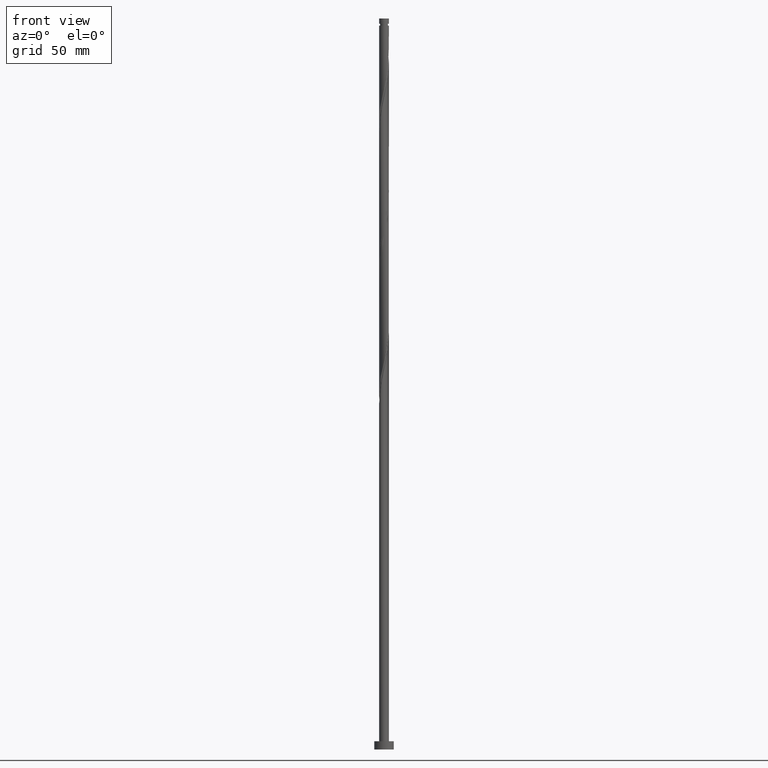
[diagram: clean part render]
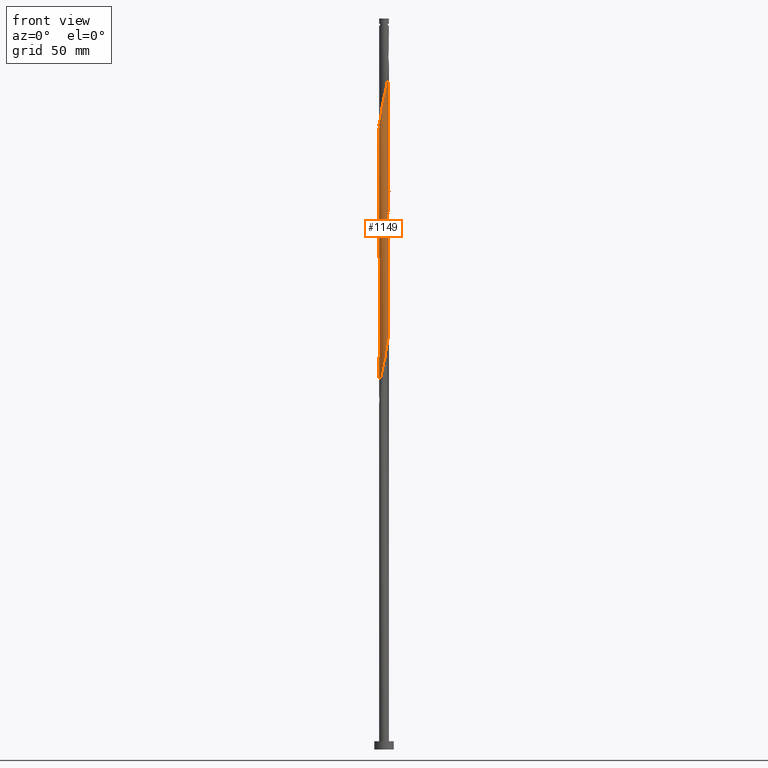
[diagram: same view with one face highlighted and labeled with its STEP entity id]
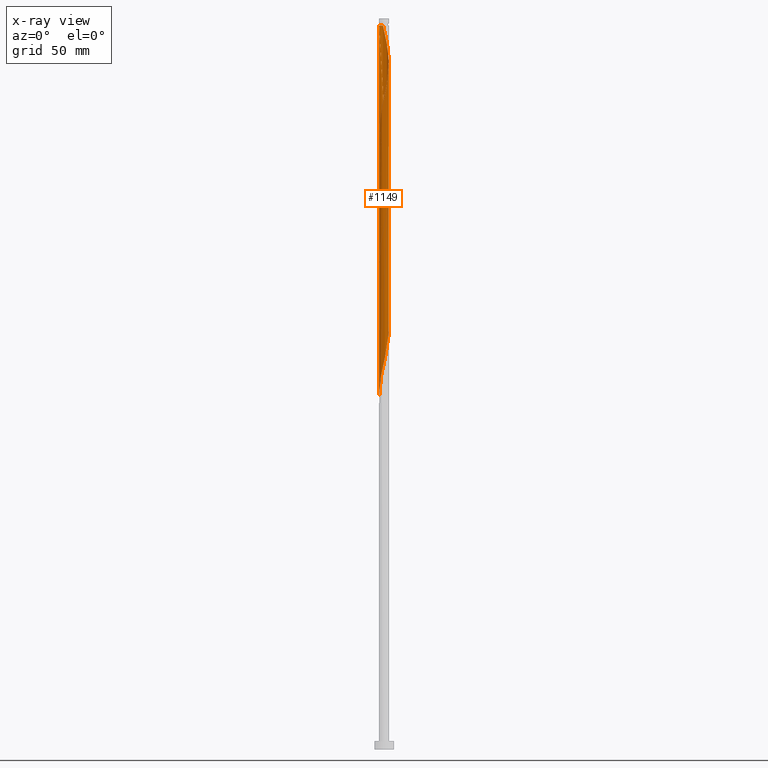
[diagram: x-ray of the same camera — body ghosted, the highlighted face saturated]
A machine part, front view. The second image highlights one B-rep face of the part: STEP entity #1149.
The next image is the same camera in x-ray: the body ghosted, the highlighted face saturated — about 0% of this face is hidden behind the body in this view.
In plain terms, the highlighted cylindrical surface (bore or boss wall) has radius 3 mm, axis along (-0, -0, -1).
Its self-contained STEP definition (entity closure, byte-faithful):
#8 = CARTESIAN_POINT ( 'NONE',  ( -3.000000000000000444, -0.2894394447869441112, 217.9966173698809087 ) ) ;
#15 = CARTESIAN_POINT ( 'NONE',  ( 1.921660071883963816, 2.322612231291373508, 353.3866902864680242 ) ) ;
#16 = CARTESIAN_POINT ( 'NONE',  ( 2.487746701027921059, 1.676638408102570255, 427.6054402864680242 ) ) ;
#21 = CARTESIAN_POINT ( 'NONE',  ( -2.652881170764462837, 1.431616744321172474, 376.8241902864680810 ) ) ;
#22 = CARTESIAN_POINT ( 'NONE',  ( 1.903086606305707695, 2.337855080563640442, 431.5116902864681379 ) ) ;
#29 = CARTESIAN_POINT ( 'NONE',  ( 2.322612231291378393, 1.921660071883965148, 428.9075236198013954 ) ) ;
#48 = CARTESIAN_POINT ( 'NONE',  ( 2.998798625402032236, 0.3074277363939136865, 421.0950236198014522 ) ) ;
#52 = CARTESIAN_POINT ( 'NONE',  ( -2.999976176089777624, 0.01195587277277179034, 300.0012736198013954 ) ) ;
#57 = DIRECTION ( 'NONE',  ( -0.000000000000000000, -0.000000000000000000, -1.000000000000000000 ) ) ;
#62 = CARTESIAN_POINT ( 'NONE',  ( 0.8635643575599494248, -2.888176173499367394, 324.7408569531347666 ) ) ;
#69 = DIRECTION ( 'NONE',  ( -0.000000000000000000, -0.000000000000000000, -1.000000000000000000 ) ) ;
#72 = CARTESIAN_POINT ( 'NONE',  ( 2.999976176089777624, -0.01195587277277147115, 341.6679402864681379 ) ) ;
#82 = CARTESIAN_POINT ( 'NONE',  ( -2.881201374597972098, 0.8865571881340392757, 296.0950236198012817 ) ) ;
#92 = CARTESIAN_POINT ( 'NONE',  ( -0.5969924622639762868, -2.939999999999999947, 318.2304402864680810 ) ) ;
#123 = CARTESIAN_POINT ( 'NONE',  ( 2.129757576223800353, 2.112849418798540047, 268.7512736198015091 ) ) ;
#136 = CARTESIAN_POINT ( 'NONE',  ( -2.112849418798540047, 2.129757576223800797, 289.5846069531348235 ) ) ;
#148 = CARTESIAN_POINT ( 'NONE',  ( -1.676638408102568256, -2.487746701027918395, 229.6887736198013954 ) ) ;
#157 = CARTESIAN_POINT ( 'NONE',  ( -2.939999999999999947, 0.5969924622639762868, 380.7304402864680810 ) ) ;
#158 = CARTESIAN_POINT ( 'NONE',  ( -2.888176173499367394, -0.8635643575599495358, 220.5741902864680526 ) ) ;
#165 = CARTESIAN_POINT ( 'NONE',  ( 0.01195587277277157696, 2.999976176089777624, 362.5012736198013954 ) ) ;
#166 = CARTESIAN_POINT ( 'NONE',  ( -1.410426430302973655, -2.664207629581488934, 392.4491902864681379 ) ) ;
#172 = CARTESIAN_POINT ( 'NONE',  ( 2.112849418798543599, 2.129757576223802129, 430.2096069531347098 ) ) ;
#181 = CARTESIAN_POINT ( 'NONE',  ( 2.652881170764467278, 1.431616744321173140, 426.3033569531347666 ) ) ;
#188 = CARTESIAN_POINT ( 'NONE',  ( 1.410426430302975209, 2.664207629581486714, 434.1158569531348235 ) ) ;
#196 = CARTESIAN_POINT ( 'NONE',  ( -3.000000000000000444, 0.000000000000000000, 447.6000000000000796 ) ) ;
#198 = CARTESIAN_POINT ( 'NONE',  ( -2.767041272681221020, -1.159086966227606874, 383.3346069531348235 ) ) ;
#201 = CARTESIAN_POINT ( 'NONE',  ( -2.501031355072561801, -1.656756518304338011, 307.8137736198013954 ) ) ;
#212 = CARTESIAN_POINT ( 'NONE',  ( -1.431616744321172474, -2.652881170764462837, 314.3241902864679673 ) ) ;
#220 = CARTESIAN_POINT ( 'NONE',  ( -2.888176173499367394, -0.8635643575599495358, 303.9075236198014522 ) ) ;
#224 = CARTESIAN_POINT ( 'NONE',  ( -3.000000000000000444, -7.455319768731686067E-16, 383.3873039311314983 ) ) ;
#228 = CARTESIAN_POINT ( 'NONE',  ( 1.136995393931459430, -2.776191901540427054, 326.0429402864680810 ) ) ;
#236 = CARTESIAN_POINT ( 'NONE',  ( 2.322612231291373952, -1.921660071883963816, 332.5533569531345961 ) ) ;
#260 = CARTESIAN_POINT ( 'NONE',  ( 0.8865571881340386096, 2.881201374597972098, 275.2616902864679673 ) ) ;
#272 = CARTESIAN_POINT ( 'NONE',  ( 1.159086966227606874, 2.767041272681216579, 273.9596069531347666 ) ) ;
#283 = CARTESIAN_POINT ( 'NONE',  ( -1.903086606305704365, 2.337855080563637777, 288.2825236198014522 ) ) ;
#294 = CARTESIAN_POINT ( 'NONE',  ( 0.01195587277277157696, 2.999976176089777624, 279.1679402864680242 ) ) ;
#303 = CARTESIAN_POINT ( 'NONE',  ( -0.5969924622639762868, -2.939999999999999947, 234.8971069531347382 ) ) ;
#308 = ORIENTED_EDGE ( 'NONE', *, *, #1634, .F. ) ;
#311 = CARTESIAN_POINT ( 'NONE',  ( 2.664207629581484493, 1.410426430302972101, 348.1783569531347666 ) ) ;
#312 = CARTESIAN_POINT ( 'NONE',  ( 2.940000000000003944, 0.5969924622639757317, 422.3971069531348235 ) ) ;
#318 = CARTESIAN_POINT ( 'NONE',  ( 2.888176173499367394, 0.8635643575599492028, 345.5741902864680810 ) ) ;
#319 = CARTESIAN_POINT ( 'NONE',  ( 0.5969924622639760647, -2.940000000000003944, 401.5637736198015091 ) ) ;
#325 = CARTESIAN_POINT ( 'NONE',  ( -2.998798625402026907, 0.3074277363939129648, 382.0325236198013954 ) ) ;
#327 = CARTESIAN_POINT ( 'NONE',  ( 2.881201374597976983, 0.8865571881340381655, 423.6991902864681379 ) ) ;
#335 = CARTESIAN_POINT ( 'NONE',  ( 2.776191901540428830, -1.136995393931462317, 414.5846069531347666 ) ) ;
#343 = CARTESIAN_POINT ( 'NONE',  ( 3.001153726777532338, -0.2835159908483710356, 418.4908569531348235 ) ) ;
#346 = CARTESIAN_POINT ( 'NONE',  ( 2.881201374597972098, -0.8865571881340383875, 337.7616902864681379 ) ) ;
#353 = DIRECTION ( 'NONE',  ( -1.000000000000000000, 0.000000000000000000, 0.000000000000000000 ) ) ;
#367 = CARTESIAN_POINT ( 'NONE',  ( -2.129757576223800353, -2.112849418798540491, 310.4179402864680810 ) ) ;
#372 = FACE_OUTER_BOUND ( 'NONE', #1046, .T. ) ;
#377 = CARTESIAN_POINT ( 'NONE',  ( 2.939999999999999947, -0.5969924622639763978, 339.0637736198014522 ) ) ;
#385 = CARTESIAN_POINT ( 'NONE',  ( -2.999999999999958256, 0.000000000000000000, 443.2304402864680810 ) ) ;
#389 = CARTESIAN_POINT ( 'NONE',  ( 2.652881170764462837, -1.431616744321172918, 335.1575236198013386 ) ) ;
#421 = CARTESIAN_POINT ( 'NONE',  ( -3.000000000000004441, -0.005977960122769745803, 378.0999301963217931 ) ) ;
#433 = CARTESIAN_POINT ( 'NONE',  ( 2.939999999999999947, -0.5969924622639763978, 255.7304402864680242 ) ) ;
#444 = CARTESIAN_POINT ( 'NONE',  ( -2.337855080563637777, -1.903086606305704365, 225.7825236198013670 ) ) ;
#456 = CARTESIAN_POINT ( 'NONE',  ( 0.2835159908483689817, -3.001153726777527897, 238.8033569531347666 ) ) ;
#463 = CARTESIAN_POINT ( 'NONE',  ( -2.112849418798540047, 2.129757576223800797, 372.9179402864680810 ) ) ;
#464 = CARTESIAN_POINT ( 'NONE',  ( 0.8635643575599520894, 2.888176173499370947, 436.7200236198013954 ) ) ;
#470 = CARTESIAN_POINT ( 'NONE',  ( 3.000000000000002220, 0.2894394447869352294, 342.9966173698808234 ) ) ;
#471 = CARTESIAN_POINT ( 'NONE',  ( -2.112849418798543599, -2.129757576223802573, 388.5429402864679673 ) ) ;
#473 = CARTESIAN_POINT ( 'NONE',  ( -3.000000000000000444, -7.455319768731686067E-16, 216.7206372644649264 ) ) ;
#485 = CARTESIAN_POINT ( 'NONE',  ( 2.129757576223802573, -2.112849418798543599, 409.3762736198013386 ) ) ;
#489 = VERTEX_POINT ( 'NONE', #473 ) ;
#491 = DIRECTION ( 'NONE',  ( -0.000000000000000000, -0.000000000000000000, -1.000000000000000000 ) ) ;
#506 = CARTESIAN_POINT ( 'NONE',  ( -3.001153726777527897, -0.2835159908483692037, 301.3033569531347098 ) ) ;
#516 = CARTESIAN_POINT ( 'NONE',  ( 0.5735401742041597029, -2.944664950138447868, 323.4387736198015091 ) ) ;
#566 = CARTESIAN_POINT ( 'NONE',  ( 0.3074277363939131313, 2.998798625402026907, 277.8658569531347098 ) ) ;
#581 = CARTESIAN_POINT ( 'NONE',  ( 0.8635643575599494248, -2.888176173499367394, 241.4075236198014238 ) ) ;
#591 = CARTESIAN_POINT ( 'NONE',  ( -0.8865571881340394977, -2.881201374597972098, 233.5950236198014238 ) ) ;
#600 = CARTESIAN_POINT ( 'NONE',  ( 2.322612231291373952, -1.921660071883963816, 249.2200236198013670 ) ) ;
#603 = EDGE_CURVE ( 'NONE', #1161, #1467, #1200, .T. ) ;
#610 = CARTESIAN_POINT ( 'NONE',  ( -0.2835159908483699254, 3.001153726777527453, 363.8033569531348235 ) ) ;
#611 = CARTESIAN_POINT ( 'NONE',  ( -0.5735401742041599249, 2.944664950138447423, 281.7721069531348235 ) ) ;
#617 = CARTESIAN_POINT ( 'NONE',  ( -2.767041272681216579, 1.159086966227606208, 378.1262736198014522 ) ) ;
#618 = CARTESIAN_POINT ( 'NONE',  ( 1.136995393931462317, 2.776191901540428830, 435.4179402864681379 ) ) ;
#623 = CARTESIAN_POINT ( 'NONE',  ( -2.322612231291373952, 1.921660071883963816, 374.2200236198013386 ) ) ;
#624 = CARTESIAN_POINT ( 'NONE',  ( -2.881201374597976539, -0.8865571881340398308, 382.0325236198013954 ) ) ;
#633 = CARTESIAN_POINT ( 'NONE',  ( -2.652881170764467278, -1.431616744321173362, 384.6366902864681379 ) ) ;
#639 = DIRECTION ( 'NONE',  ( -1.000000000000000000, 0.000000000000000000, 0.000000000000000000 ) ) ;
#641 = CARTESIAN_POINT ( 'NONE',  ( -2.322612231291378393, -1.921660071883965815, 387.2408569531348803 ) ) ;
#656 = CARTESIAN_POINT ( 'NONE',  ( -0.8865571881340394977, -2.881201374597972098, 316.9283569531345393 ) ) ;
#668 = CARTESIAN_POINT ( 'NONE',  ( -2.944664950138447423, -0.5735401742041597029, 302.6054402864680242 ) ) ;
#678 = CARTESIAN_POINT ( 'NONE',  ( -2.998798625402026907, 0.3074277363939129648, 298.6991902864680810 ) ) ;
#687 = CARTESIAN_POINT ( 'NONE',  ( -2.652881170764462837, 1.431616744321172474, 293.4908569531346529 ) ) ;
#698 = CARTESIAN_POINT ( 'NONE',  ( 2.767041272681216579, -1.159086966227606652, 336.4596069531348235 ) ) ;
#716 = CARTESIAN_POINT ( 'NONE',  ( -2.322612231291373952, 1.921660071883963816, 290.8866902864679673 ) ) ;
#717 = ORIENTED_EDGE ( 'NONE', *, *, #1511, .F. ) ;
#729 = CARTESIAN_POINT ( 'NONE',  ( -0.2835159908483699254, 3.001153726777527453, 280.4700236198013954 ) ) ;
#738 = VECTOR ( 'NONE', #491, 1000.000000000000000 ) ;
#741 = CARTESIAN_POINT ( 'NONE',  ( 1.431616744321172918, 2.652881170764462837, 272.6575236198013954 ) ) ;
#750 = CARTESIAN_POINT ( 'NONE',  ( 2.998798625402026907, -0.3074277363939145191, 257.0325236198013954 ) ) ;
#751 = ORIENTED_EDGE ( 'NONE', *, *, #1412, .T. ) ;
#758 = CARTESIAN_POINT ( 'NONE',  ( 1.676638408102569811, 2.487746701027917062, 354.6887736198013954 ) ) ;
#759 = CARTESIAN_POINT ( 'NONE',  ( 2.999976176089777624, -0.01195587277277147115, 258.3346069531347098 ) ) ;
#766 = CARTESIAN_POINT ( 'NONE',  ( -0.5735401742041599249, 2.944664950138447423, 365.1054402864680810 ) ) ;
#772 = CARTESIAN_POINT ( 'NONE',  ( -2.487746701027918395, 1.676638408102568256, 375.5221069531347098 ) ) ;
#773 = CARTESIAN_POINT ( 'NONE',  ( 1.656756518304341563, 2.501031355072564022, 432.8137736198013954 ) ) ;
#780 = CARTESIAN_POINT ( 'NONE',  ( -0.8635643575599516453, -2.888176173499371391, 395.0533569531348235 ) ) ;
#793 = CYLINDRICAL_SURFACE ( 'NONE', #1234, 3.000000000000000444 ) ;
#795 = CARTESIAN_POINT ( 'NONE',  ( 0.3074277363939123542, -2.998798625402032236, 400.2616902864680810 ) ) ;
#800 = CARTESIAN_POINT ( 'NONE',  ( -2.776191901540426610, -1.136995393931459430, 305.2096069531346529 ) ) ;
#804 = CARTESIAN_POINT ( 'NONE',  ( 0.000000000000000000, 0.000000000000000000, 447.6000000000000796 ) ) ;
#809 = CARTESIAN_POINT ( 'NONE',  ( -1.921660071883963816, -2.322612231291373952, 311.7200236198013954 ) ) ;
#813 = CARTESIAN_POINT ( 'NONE',  ( -3.000000000000004885, 1.538591617271993289E-15, 378.0735766418045500 ) ) ;
#818 = CARTESIAN_POINT ( 'NONE',  ( 2.112849418798540047, -2.129757576223800353, 331.2512736198014522 ) ) ;
#828 = CARTESIAN_POINT ( 'NONE',  ( -0.01195587277277125951, -2.999976176089777624, 320.8346069531347666 ) ) ;
#860 = CARTESIAN_POINT ( 'NONE',  ( 2.337855080563639110, 1.903086606305703032, 267.4491902864680242 ) ) ;
#872 = CARTESIAN_POINT ( 'NONE',  ( 0.5969924622639766199, 2.939999999999999947, 276.5637736198013954 ) ) ;
#882 = CARTESIAN_POINT ( 'NONE',  ( 1.921660071883963816, 2.322612231291373508, 270.0533569531347666 ) ) ;
#894 = CARTESIAN_POINT ( 'NONE',  ( -1.921660071883963816, -2.322612231291373952, 228.3866902864680242 ) ) ;
#895 = ORIENTED_EDGE ( 'NONE', *, *, #1388, .T. ) ;
#904 = CARTESIAN_POINT ( 'NONE',  ( -2.129757576223800353, -2.112849418798540491, 227.0846069531347382 ) ) ;
#909 = CARTESIAN_POINT ( 'NONE',  ( -2.881201374597972098, 0.8865571881340392757, 379.4283569531346529 ) ) ;
#910 = CARTESIAN_POINT ( 'NONE',  ( 0.2835159908483711466, 3.001153726777532338, 439.3241902864682515 ) ) ;
#918 = CARTESIAN_POINT ( 'NONE',  ( -0.5735401742041612572, -2.944664950138451864, 396.3554402864681379 ) ) ;
#924 = CARTESIAN_POINT ( 'NONE',  ( 3.000000000000000444, 1.036289447853704348E-15, 341.7206372644649264 ) ) ;
#926 = CARTESIAN_POINT ( 'NONE',  ( -0.3074277363939134644, 2.998798625402032236, 441.9283569531347666 ) ) ;
#934 = CARTESIAN_POINT ( 'NONE',  ( -2.998798625402032236, -0.3074277363939125207, 379.4283569531349940 ) ) ;
#948 = CARTESIAN_POINT ( 'NONE',  ( 3.000000000000000444, 3.673940397442060361E-16, 447.6000000000000796 ) ) ;
#960 = CARTESIAN_POINT ( 'NONE',  ( -0.5969924622640557788, 2.940000000000801084, 443.2304402864681947 ) ) ;
#970 = CARTESIAN_POINT ( 'NONE',  ( -2.664207629581484937, -1.410426430302971212, 306.5116902864680242 ) ) ;
#979 = CARTESIAN_POINT ( 'NONE',  ( -2.767041272681216579, 1.159086966227606208, 294.7929402864681379 ) ) ;
#992 = ORIENTED_EDGE ( 'NONE', *, *, #603, .F. ) ;
#1009 = CARTESIAN_POINT ( 'NONE',  ( 2.881201374597972098, -0.8865571881340383875, 254.4283569531347666 ) ) ;
#1022 = CARTESIAN_POINT ( 'NONE',  ( -2.999976176089781621, -0.01195587277277101491, 378.1262736198014522 ) ) ;
#1035 = CARTESIAN_POINT ( 'NONE',  ( 2.664207629581484493, 1.410426430302972101, 264.8450236198013954 ) ) ;
#1045 = CARTESIAN_POINT ( 'NONE',  ( -1.136995393931460319, 2.776191901540426166, 284.3762736198014522 ) ) ;
#1046 = EDGE_LOOP ( 'NONE', ( #1781, #895, #308, #751, #1814, #717, #1947, #992 ) ) ;
#1050 = EDGE_CURVE ( 'NONE', #1445, #1161, #1901, .T. ) ;
#1056 = CARTESIAN_POINT ( 'NONE',  ( -0.8635643575599494248, 2.888176173499367394, 283.0741902864681379 ) ) ;
#1062 = CARTESIAN_POINT ( 'NONE',  ( 0.3074277363939131313, 2.998798625402026907, 361.1991902864680810 ) ) ;
#1063 = CARTESIAN_POINT ( 'NONE',  ( 0.5735401742041631445, 2.944664950138451864, 438.0221069531348235 ) ) ;
#1070 = CARTESIAN_POINT ( 'NONE',  ( 1.159086966227607096, -2.767041272681220576, 404.1679402864681379 ) ) ;
#1073 = VERTEX_POINT ( 'NONE', #813 ) ;
#1078 = CARTESIAN_POINT ( 'NONE',  ( -1.136995393931462317, -2.776191901540429274, 393.7512736198013386 ) ) ;
#1087 = CARTESIAN_POINT ( 'NONE',  ( -0.5969924622640556677, 2.940000000000801084, 443.2304402864681947 ) ) ;
#1095 = CARTESIAN_POINT ( 'NONE',  ( -0.01195587277276973816, 2.999976176089781621, 440.6262736198014522 ) ) ;
#1098 = CARTESIAN_POINT ( 'NONE',  ( 1.410426430302970990, -2.664207629581484937, 327.3450236198013954 ) ) ;
#1114 = LINE ( 'NONE', #1732, #738 ) ;
#1119 = DIRECTION ( 'NONE',  ( -0.000000000000000000, -0.000000000000000000, -1.000000000000000000 ) ) ;
#1127 = LINE ( 'NONE', #948, #1758 ) ;
#1149 = ADVANCED_FACE ( 'NONE', ( #372 ), #793, .T. ) ;
#1161 = VERTEX_POINT ( 'NONE', #224 ) ;
#1168 = CARTESIAN_POINT ( 'NONE',  ( -3.000000000000004885, 1.538591617271993289E-15, 378.0735766418045500 ) ) ;
#1182 = CARTESIAN_POINT ( 'NONE',  ( 3.001153726777527897, 0.2835159908483688151, 259.6366902864680242 ) ) ;
#1186 =( BOUNDED_CURVE ( )  B_SPLINE_CURVE ( 2, ( #1446, #1590, #72, #1267, #377, #346, #698, #389, #1600, #236, #818, #1738, #1580, #1098, #228, #62, #516, #1571, #828, #1885, #92, #656, #1711, #212, #1433, #809, #367, #1255, #201, #970, #800, #220, #668, #506, #52, #678, #1906, #82, #979, #687, #1284, #716, #136, #283, #1328, #1350, #1045, #1056, #611, #729, #294, #566, #872, #260, #272, #741, #1806, #882, #123, #860, #1493, #1035, #1340, #1960, #1644, #1182, #759, #750, #433, #1009, #1981, #1831, #1504, #600, #1633, #1946, #1466, #1666, #1972, #581, #1204, #456, #1792, #1479, #303, #591, #1194, #1820, #148, #894, #904, #444, #1655, #1314, #1513, #158, #1359, #8, #1780 ),
 .UNSPECIFIED., .F., .T. ) 
 B_SPLINE_CURVE_WITH_KNOTS ( ( 3, 2, 2, 2, 2, 2, 2, 2, 2, 2, 2, 2, 2, 2, 2, 2, 2, 2, 2, 2, 2, 2, 2, 2, 2, 2, 2, 2, 2, 2, 2, 2, 2, 2, 2, 2, 2, 2, 2, 2, 2, 2, 2, 2, 2, 2, 2, 2, 2, 3 ),
 ( 0.5545286902180873723, 0.5546875000000000000, 0.5625000000000000000, 0.5703125000000000000, 0.5781250000000000000, 0.5859375000000000000, 0.5937500000000000000, 0.6015625000000000000, 0.6093750000000000000, 0.6171875000000000000, 0.6250000000000000000, 0.6328125000000000000, 0.6406250000000000000, 0.6484375000000000000, 0.6562500000000000000, 0.6640625000000000000, 0.6718750000000000000, 0.6796875000000000000, 0.6875000000000000000, 0.6953125000000000000, 0.7031250000000000000, 0.7109375000000000000, 0.7187500000000000000, 0.7265625000000000000, 0.7343750000000000000, 0.7421875000000000000, 0.7500000000000000000, 0.7578125000000000000, 0.7656250000000000000, 0.7734375000000000000, 0.7812500000000000000, 0.7890625000000000000, 0.7968750000000000000, 0.8046875000000000000, 0.8125000000000000000, 0.8203125000000000000, 0.8281250000000000000, 0.8359375000000000000, 0.8437500000000000000, 0.8515625000000000000, 0.8593750000000000000, 0.8671875000000000000, 0.8750000000000000000, 0.8828125000000000000, 0.8906250000000000000, 0.8984375000000000000, 0.9062500000000000000, 0.9140625000000000000, 0.9218750000000000000, 0.9295286902180871502 ),
 .UNSPECIFIED. ) 
 CURVE ( )  GEOMETRIC_REPRESENTATION_ITEM ( )  RATIONAL_B_SPLINE_CURVE ( ( 0.9089165573359699879, 0.9090019243628747470, 0.9090909090909664592, 0.9047133878838725662, 0.9090909090909664592, 0.9047133878838725662, 0.9090909090909664592, 0.9047133878838725662, 0.9090909090909664592, 0.9047133878838725662, 0.9090909090909664592, 0.9047133878838725662, 0.9090909090909664592, 0.9047133878838725662, 0.9090909090909664592, 0.9047133878838725662, 0.9090909090909664592, 0.9047133878838725662, 0.9090909090909664592, 0.9047133878838725662, 0.9090909090909664592, 0.9047133878838725662, 0.9090909090909664592, 0.9047133878838725662, 0.9090909090909664592, 0.9047133878838725662, 0.9090909090909664592, 0.9047133878838725662, 0.9090909090909664592, 0.9047133878838725662, 0.9090909090909664592, 0.9047133878838725662, 0.9090909090909664592, 0.9047133878838725662, 0.9090909090909664592, 0.9047133878838725662, 0.9090909090909664592, 0.9047133878838725662, 0.9090909090909664592, 0.9047133878838725662, 0.9090909090909664592, 0.9047133878838725662, 0.9090909090909664592, 0.9047133878838725662, 0.9090909090909664592, 0.9047133878838725662, 0.9090909090909664592, 0.9047133878838725662, 0.9090909090909664592, 0.9047133878838725662, 0.9090909090909664592, 0.9047133878838725662, 0.9090909090909664592, 0.9047133878838725662, 0.9090909090909664592, 0.9047133878838725662, 0.9090909090909664592, 0.9047133878838725662, 0.9090909090909664592, 0.9047133878838725662, 0.9090909090909664592, 0.9047133878838725662, 0.9090909090909664592, 0.9047133878838725662, 0.9090909090909664592, 0.9047133878838725662, 0.9090909090909664592, 0.9047133878838725662, 0.9090909090909664592, 0.9047133878838725662, 0.9090909090909664592, 0.9047133878838725662, 0.9090909090909664592, 0.9047133878838725662, 0.9090909090909664592, 0.9047133878838725662, 0.9090909090909664592, 0.9047133878838725662, 0.9090909090909664592, 0.9047133878838725662, 0.9090909090909664592, 0.9047133878838725662, 0.9090909090909664592, 0.9047133878838725662, 0.9090909090909664592, 0.9047133878838725662, 0.9090909090909664592, 0.9047133878838725662, 0.9090909090909664592, 0.9047133878838725662, 0.9090909090909664592, 0.9047133878838725662, 0.9090909090909664592, 0.9047133878838725662, 0.9090909090909664592, 0.9047133878838725662, 0.9090909090909664592, 0.9048023726119643895, 0.9089165573359698769 ) ) 
 REPRESENTATION_ITEM ( '' )  );
#1194 = CARTESIAN_POINT ( 'NONE',  ( -1.159086966227606652, -2.767041272681216579, 232.2929402864680810 ) ) ;
#1200 =( BOUNDED_CURVE ( )  B_SPLINE_CURVE ( 2, ( #1224, #1665, #1512, #325, #157, #909, #617, #21, #772, #623, #463, #1367, #1203, #1536, #1218, #1520, #766, #610, #165, #1062, #1231, #1682, #1373, #1675, #758, #15, #1851, #1840, #1830, #311, #1846, #318, #1690, #470, #924 ),
 .UNSPECIFIED., .F., .T. ) 
 B_SPLINE_CURVE_WITH_KNOTS ( ( 3, 2, 2, 2, 2, 2, 2, 2, 2, 2, 2, 2, 2, 2, 2, 2, 2, 3 ),
 ( 0.4295286902180873168, 0.4296875000000000000, 0.4375000000000000000, 0.4453125000000000000, 0.4531250000000000000, 0.4609375000000000000, 0.4687500000000000000, 0.4765625000000000000, 0.4843750000000000000, 0.4921875000000000000, 0.5000000000000000000, 0.5078125000000000000, 0.5156250000000000000, 0.5234375000000000000, 0.5312500000000000000, 0.5390625000000000000, 0.5468750000000000000, 0.5545286902180873723 ),
 .UNSPECIFIED. ) 
 CURVE ( )  GEOMETRIC_REPRESENTATION_ITEM ( )  RATIONAL_B_SPLINE_CURVE ( ( 0.9089165573359698769, 0.9090019243628746359, 0.9090909090909664592, 0.9047133878838725662, 0.9090909090909664592, 0.9047133878838725662, 0.9090909090909664592, 0.9047133878838725662, 0.9090909090909664592, 0.9047133878838725662, 0.9090909090909664592, 0.9047133878838725662, 0.9090909090909664592, 0.9047133878838725662, 0.9090909090909664592, 0.9047133878838725662, 0.9090909090909664592, 0.9047133878838725662, 0.9090909090909664592, 0.9047133878838725662, 0.9090909090909664592, 0.9047133878838725662, 0.9090909090909664592, 0.9047133878838725662, 0.9090909090909664592, 0.9047133878838725662, 0.9090909090909664592, 0.9047133878838725662, 0.9090909090909664592, 0.9047133878838725662, 0.9090909090909664592, 0.9047133878838725662, 0.9090909090909664592, 0.9048023726119642784, 0.9089165573359699879 ) ) 
 REPRESENTATION_ITEM ( '' )  );
#1203 = CARTESIAN_POINT ( 'NONE',  ( -1.656756518304338233, 2.501031355072561801, 370.3137736198014522 ) ) ;
#1204 = CARTESIAN_POINT ( 'NONE',  ( 0.5735401742041597029, -2.944664950138447868, 240.1054402864680810 ) ) ;
#1213 = CARTESIAN_POINT ( 'NONE',  ( 2.888176173499371391, -0.8635643575599516453, 415.8866902864681947 ) ) ;
#1218 = CARTESIAN_POINT ( 'NONE',  ( -1.136995393931460319, 2.776191901540426166, 367.7096069531347666 ) ) ;
#1219 = CARTESIAN_POINT ( 'NONE',  ( 1.676638408102569588, -2.487746701027921947, 406.7721069531347098 ) ) ;
#1224 = CARTESIAN_POINT ( 'NONE',  ( -3.000000000000000444, -7.455319768731687053E-16, 383.3873039311315551 ) ) ;
#1225 = CARTESIAN_POINT ( 'NONE',  ( 2.664207629581487602, -1.410426430302975209, 413.2825236198014522 ) ) ;
#1231 = CARTESIAN_POINT ( 'NONE',  ( 0.5969924622639766199, 2.939999999999999947, 359.8971069531347098 ) ) ;
#1233 = CARTESIAN_POINT ( 'NONE',  ( 1.431616744321173362, -2.652881170764467278, 405.4700236198015091 ) ) ;
#1234 = AXIS2_PLACEMENT_3D ( 'NONE', #804, #69, #353 ) ;
#1255 = CARTESIAN_POINT ( 'NONE',  ( -2.337855080563637777, -1.903086606305704365, 309.1158569531347666 ) ) ;
#1267 = CARTESIAN_POINT ( 'NONE',  ( 2.998798625402026907, -0.3074277363939145191, 340.3658569531347098 ) ) ;
#1284 = CARTESIAN_POINT ( 'NONE',  ( -2.487746701027918395, 1.676638408102568256, 292.1887736198014522 ) ) ;
#1314 = CARTESIAN_POINT ( 'NONE',  ( -2.664207629581484937, -1.410426430302971212, 223.1783569531347666 ) ) ;
#1328 = CARTESIAN_POINT ( 'NONE',  ( -1.656756518304338233, 2.501031355072561801, 286.9804402864680810 ) ) ;
#1340 = CARTESIAN_POINT ( 'NONE',  ( 2.776191901540427054, 1.136995393931459430, 263.5429402864681379 ) ) ;
#1350 = CARTESIAN_POINT ( 'NONE',  ( -1.410426430302971434, 2.664207629581484493, 285.6783569531347666 ) ) ;
#1359 = CARTESIAN_POINT ( 'NONE',  ( -2.944664950138447423, -0.5735401742041597029, 219.2721069531347666 ) ) ;
#1365 = VECTOR ( 'NONE', #1389, 1000.000000000000000 ) ;
#1367 = CARTESIAN_POINT ( 'NONE',  ( -1.903086606305704365, 2.337855080563637777, 371.6158569531345961 ) ) ;
#1368 = CARTESIAN_POINT ( 'NONE',  ( 0.01195587277277016316, -2.999976176089781621, 398.9596069531346529 ) ) ;
#1373 = CARTESIAN_POINT ( 'NONE',  ( 1.159086966227606874, 2.767041272681216579, 357.2929402864680242 ) ) ;
#1388 = EDGE_CURVE ( 'NONE', #1445, #1468, #1588, .T. ) ;
#1389 = DIRECTION ( 'NONE',  ( -0.000000000000000000, -0.000000000000000000, -1.000000000000000000 ) ) ;
#1391 = CARTESIAN_POINT ( 'NONE',  ( -2.487746701027921503, -1.676638408102569588, 385.9387736198015091 ) ) ;
#1399 = CARTESIAN_POINT ( 'NONE',  ( -2.940000000000003944, -0.5969924622639761758, 380.7304402864680810 ) ) ;
#1406 = CARTESIAN_POINT ( 'NONE',  ( 0.000000000000000000, 0.000000000000000000, 443.2304402864680810 ) ) ;
#1412 = EDGE_CURVE ( 'NONE', #1073, #489, #1114, .T. ) ;
#1413 = CARTESIAN_POINT ( 'NONE',  ( 3.000000000000000444, 1.036289447853704348E-15, 341.7206372644649264 ) ) ;
#1422 = AXIS2_PLACEMENT_3D ( 'NONE', #1406, #57, #639 ) ;
#1433 = CARTESIAN_POINT ( 'NONE',  ( -1.676638408102568256, -2.487746701027918395, 313.0221069531346529 ) ) ;
#1445 = VERTEX_POINT ( 'NONE', #385 ) ;
#1446 = CARTESIAN_POINT ( 'NONE',  ( 3.000000000000000444, 1.036289447853704348E-15, 341.7206372644649264 ) ) ;
#1466 = CARTESIAN_POINT ( 'NONE',  ( 1.656756518304338011, -2.501031355072561801, 245.3137736198014238 ) ) ;
#1467 = VERTEX_POINT ( 'NONE', #1413 ) ;
#1468 = VERTEX_POINT ( 'NONE', #960 ) ;
#1479 = CARTESIAN_POINT ( 'NONE',  ( -0.3074277363939131313, -2.998798625402026907, 236.1991902864680242 ) ) ;
#1493 = CARTESIAN_POINT ( 'NONE',  ( 2.501031355072561801, 1.656756518304337567, 266.1471069531347666 ) ) ;
#1504 = CARTESIAN_POINT ( 'NONE',  ( 2.487746701027917062, -1.676638408102569588, 250.5221069531347666 ) ) ;
#1511 = EDGE_CURVE ( 'NONE', #1759, #1467, #1127, .T. ) ;
#1512 = CARTESIAN_POINT ( 'NONE',  ( -2.999976176089777624, 0.01195587277277179034, 383.3346069531347098 ) ) ;
#1513 = CARTESIAN_POINT ( 'NONE',  ( -2.776191901540426610, -1.136995393931459430, 221.8762736198014238 ) ) ;
#1520 = CARTESIAN_POINT ( 'NONE',  ( -0.8635643575599494248, 2.888176173499367394, 366.4075236198013954 ) ) ;
#1530 = CARTESIAN_POINT ( 'NONE',  ( -1.656756518304341119, -2.501031355072564022, 391.1471069531347666 ) ) ;
#1536 = CARTESIAN_POINT ( 'NONE',  ( -1.410426430302971434, 2.664207629581484493, 369.0116902864680810 ) ) ;
#1547 = CARTESIAN_POINT ( 'NONE',  ( -0.2835159908483707025, -3.001153726777531894, 397.6575236198013954 ) ) ;
#1557 = CARTESIAN_POINT ( 'NONE',  ( 3.000000000000000444, 3.673940397442060361E-16, 443.2304402864681947 ) ) ;
#1571 = CARTESIAN_POINT ( 'NONE',  ( 0.2835159908483689817, -3.001153726777527897, 322.1366902864680810 ) ) ;
#1579 = EDGE_CURVE ( 'NONE', #1467, #489, #1186, .T. ) ;
#1580 = CARTESIAN_POINT ( 'NONE',  ( 1.656756518304338011, -2.501031355072561801, 328.6471069531347666 ) ) ;
#1588 = CIRCLE ( 'NONE', #1422, 2.999999999999958256 ) ;
#1590 = CARTESIAN_POINT ( 'NONE',  ( 3.000000000000000444, -0.005977960122791123668, 341.6942837099476833 ) ) ;
#1600 = CARTESIAN_POINT ( 'NONE',  ( 2.487746701027917062, -1.676638408102569588, 333.8554402864680810 ) ) ;
#1633 = CARTESIAN_POINT ( 'NONE',  ( 2.112849418798540047, -2.129757576223800353, 247.9179402864680526 ) ) ;
#1634 = EDGE_CURVE ( 'NONE', #1073, #1468, #1815, .T. ) ;
#1644 = CARTESIAN_POINT ( 'NONE',  ( 2.944664950138447423, 0.5735401742041604800, 260.9387736198014522 ) ) ;
#1655 = CARTESIAN_POINT ( 'NONE',  ( -2.501031355072561801, -1.656756518304338011, 224.4804402864680810 ) ) ;
#1665 = CARTESIAN_POINT ( 'NONE',  ( -3.000000000000000888, 0.005977960122789339505, 383.3609503766142552 ) ) ;
#1666 = CARTESIAN_POINT ( 'NONE',  ( 1.410426430302970990, -2.664207629581484937, 244.0116902864680526 ) ) ;
#1675 = CARTESIAN_POINT ( 'NONE',  ( 1.431616744321172918, 2.652881170764462837, 355.9908569531346529 ) ) ;
#1676 = CARTESIAN_POINT ( 'NONE',  ( 2.337855080563639110, -1.903086606305708361, 410.6783569531347098 ) ) ;
#1682 = CARTESIAN_POINT ( 'NONE',  ( 0.8865571881340386096, 2.881201374597972098, 358.5950236198013386 ) ) ;
#1683 = CARTESIAN_POINT ( 'NONE',  ( 2.999976176089781621, 0.01195587277276994806, 419.7929402864681379 ) ) ;
#1690 = CARTESIAN_POINT ( 'NONE',  ( 2.944664950138447423, 0.5735401742041604800, 344.2721069531348235 ) ) ;
#1692 = CARTESIAN_POINT ( 'NONE',  ( 2.767041272681220576, 1.159086966227606874, 425.0012736198014522 ) ) ;
#1700 = CARTESIAN_POINT ( 'NONE',  ( 1.921660071883965815, -2.322612231291378393, 408.0741902864681947 ) ) ;
#1708 = CARTESIAN_POINT ( 'NONE',  ( -1.903086606305708139, -2.337855080563639998, 389.8450236198014522 ) ) ;
#1711 = CARTESIAN_POINT ( 'NONE',  ( -1.159086966227606652, -2.767041272681216579, 315.6262736198014522 ) ) ;
#1732 = CARTESIAN_POINT ( 'NONE',  ( -3.000000000000000444, 0.000000000000000000, 447.6000000000000796 ) ) ;
#1738 = CARTESIAN_POINT ( 'NONE',  ( 1.903086606305703476, -2.337855080563639110, 329.9491902864680810 ) ) ;
#1758 = VECTOR ( 'NONE', #1119, 1000.000000000000000 ) ;
#1759 = VERTEX_POINT ( 'NONE', #1557 ) ;
#1780 = CARTESIAN_POINT ( 'NONE',  ( -3.000000000000000444, -7.455319768731687053E-16, 216.7206372644649264 ) ) ;
#1781 = ORIENTED_EDGE ( 'NONE', *, *, #1050, .F. ) ;
#1792 = CARTESIAN_POINT ( 'NONE',  ( -0.01195587277277125951, -2.999976176089777624, 237.5012736198014522 ) ) ;
#1806 = CARTESIAN_POINT ( 'NONE',  ( 1.676638408102569811, 2.487746701027917062, 271.3554402864681379 ) ) ;
#1814 = ORIENTED_EDGE ( 'NONE', *, *, #1579, .F. ) ;
#1815 =( BOUNDED_CURVE ( )  B_SPLINE_CURVE ( 2, ( #1168, #421, #1022, #934, #1399, #624, #198, #633, #1391, #641, #471, #1708, #1530, #166, #1078, #780, #918, #1547, #1368, #795, #319, #1862, #1070, #1233, #1219, #1700, #485, #1676, #1847, #1225, #335, #1213, #1841, #343, #1683, #48, #312, #327, #1692, #181, #16, #29, #172, #22, #773, #188, #618, #464, #1063, #910, #1095, #926, #1087 ),
 .UNSPECIFIED., .F., .T. ) 
 B_SPLINE_CURVE_WITH_KNOTS ( ( 3, 2, 2, 2, 2, 2, 2, 2, 2, 2, 2, 2, 2, 2, 2, 2, 2, 2, 2, 2, 2, 2, 2, 2, 2, 2, 3 ),
 ( 0.5545286902180868172, 0.5546875000000000000, 0.5625000000000000000, 0.5703125000000000000, 0.5781250000000000000, 0.5859375000000000000, 0.5937500000000000000, 0.6015625000000000000, 0.6093750000000000000, 0.6171875000000000000, 0.6250000000000000000, 0.6328125000000000000, 0.6406250000000000000, 0.6484375000000000000, 0.6562500000000000000, 0.6640625000000000000, 0.6718750000000000000, 0.6796875000000000000, 0.6875000000000000000, 0.6953125000000000000, 0.7031250000000000000, 0.7109375000000000000, 0.7187500000000000000, 0.7265625000000000000, 0.7343750000000000000, 0.7421875000000000000, 0.7500000000000000000 ),
 .UNSPECIFIED. ) 
 CURVE ( )  GEOMETRIC_REPRESENTATION_ITEM ( )  RATIONAL_B_SPLINE_CURVE ( ( 0.9089165573359743178, 0.9090019243628792989, 0.9090909090909713441, 0.9047133878838773402, 0.9090909090909713441, 0.9047133878838773402, 0.9090909090909713441, 0.9047133878838773402, 0.9090909090909713441, 0.9047133878838773402, 0.9090909090909713441, 0.9047133878838773402, 0.9090909090909713441, 0.9047133878838773402, 0.9090909090909713441, 0.9047133878838773402, 0.9090909090909713441, 0.9047133878838773402, 0.9090909090909713441, 0.9047133878838773402, 0.9090909090909713441, 0.9047133878838773402, 0.9090909090909713441, 0.9047133878838773402, 0.9090909090909713441, 0.9047133878838773402, 0.9090909090909713441, 0.9047133878838773402, 0.9090909090909713441, 0.9047133878838773402, 0.9090909090909713441, 0.9047133878838773402, 0.9090909090909713441, 0.9047133878838773402, 0.9090909090909713441, 0.9047133878838773402, 0.9090909090909713441, 0.9047133878838773402, 0.9090909090909713441, 0.9047133878838773402, 0.9090909090909713441, 0.9047133878838773402, 0.9090909090909713441, 0.9047133878838773402, 0.9090909090909713441, 0.9047133878838773402, 0.9090909090909713441, 0.9047133878838773402, 0.9090909090909713441, 0.9047133878838773402, 0.9090909090909713441, 0.9047133878838773402, 0.9090909090909713441 ) ) 
 REPRESENTATION_ITEM ( '' )  );
#1820 = CARTESIAN_POINT ( 'NONE',  ( -1.431616744321172474, -2.652881170764462837, 230.9908569531347382 ) ) ;
#1830 = CARTESIAN_POINT ( 'NONE',  ( 2.501031355072561801, 1.656756518304337567, 349.4804402864681379 ) ) ;
#1831 = CARTESIAN_POINT ( 'NONE',  ( 2.652881170764462837, -1.431616744321172918, 251.8241902864679957 ) ) ;
#1840 = CARTESIAN_POINT ( 'NONE',  ( 2.337855080563639110, 1.903086606305703032, 350.7825236198013954 ) ) ;
#1841 = CARTESIAN_POINT ( 'NONE',  ( 2.944664950138451864, -0.5735401742041628115, 417.1887736198013954 ) ) ;
#1846 = CARTESIAN_POINT ( 'NONE',  ( 2.776191901540427054, 1.136995393931459430, 346.8762736198014522 ) ) ;
#1847 = CARTESIAN_POINT ( 'NONE',  ( 2.501031355072564022, -1.656756518304341563, 411.9804402864680242 ) ) ;
#1851 = CARTESIAN_POINT ( 'NONE',  ( 2.129757576223800353, 2.112849418798540047, 352.0846069531347666 ) ) ;
#1862 = CARTESIAN_POINT ( 'NONE',  ( 0.8865571881340396088, -2.881201374597976539, 402.8658569531347666 ) ) ;
#1885 = CARTESIAN_POINT ( 'NONE',  ( -0.3074277363939131313, -2.998798625402026907, 319.5325236198013954 ) ) ;
#1901 = LINE ( 'NONE', #196, #1365 ) ;
#1906 = CARTESIAN_POINT ( 'NONE',  ( -2.939999999999999947, 0.5969924622639762868, 297.3971069531348235 ) ) ;
#1946 = CARTESIAN_POINT ( 'NONE',  ( 1.903086606305703476, -2.337855080563639110, 246.6158569531347098 ) ) ;
#1947 = ORIENTED_EDGE ( 'NONE', *, *, #1511, .T. ) ;
#1960 = CARTESIAN_POINT ( 'NONE',  ( 2.888176173499367394, 0.8635643575599492028, 262.2408569531347098 ) ) ;
#1972 = CARTESIAN_POINT ( 'NONE',  ( 1.136995393931459430, -2.776191901540427054, 242.7096069531347666 ) ) ;
#1981 = CARTESIAN_POINT ( 'NONE',  ( 2.767041272681216579, -1.159086966227606652, 253.1262736198015091 ) ) ;